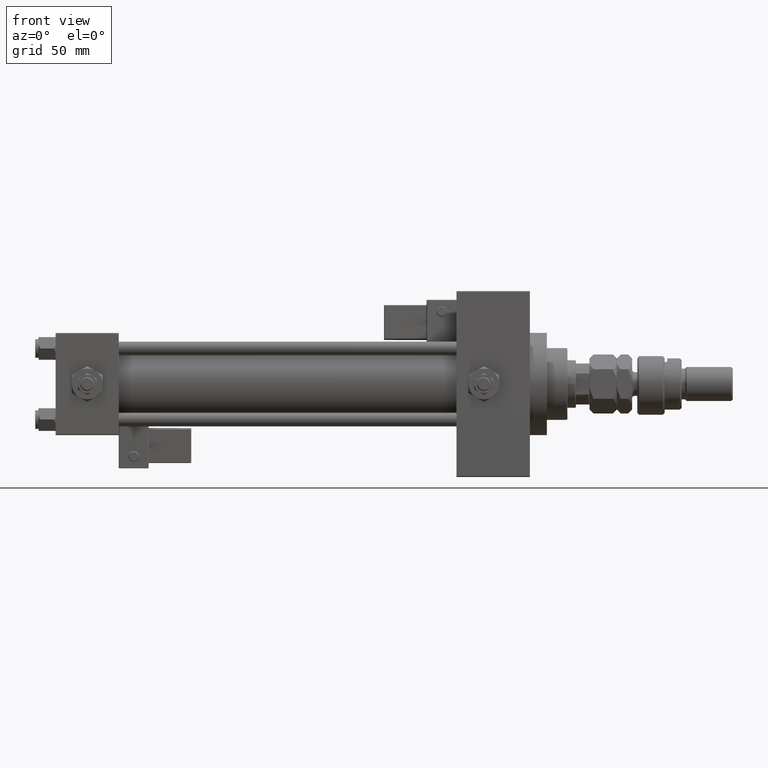
[diagram: clean part render]
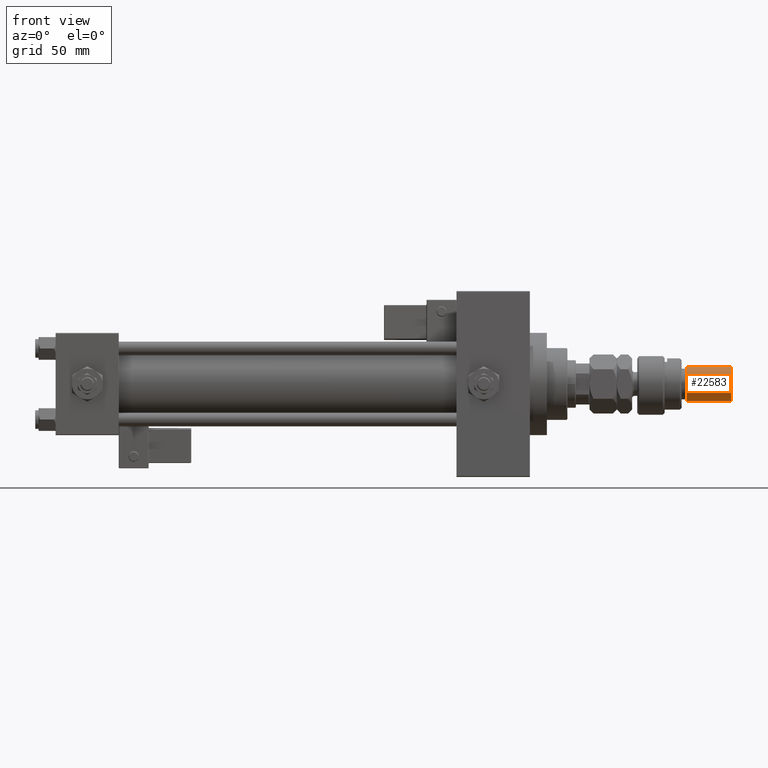
[diagram: same view with one face highlighted and labeled with its STEP entity id]
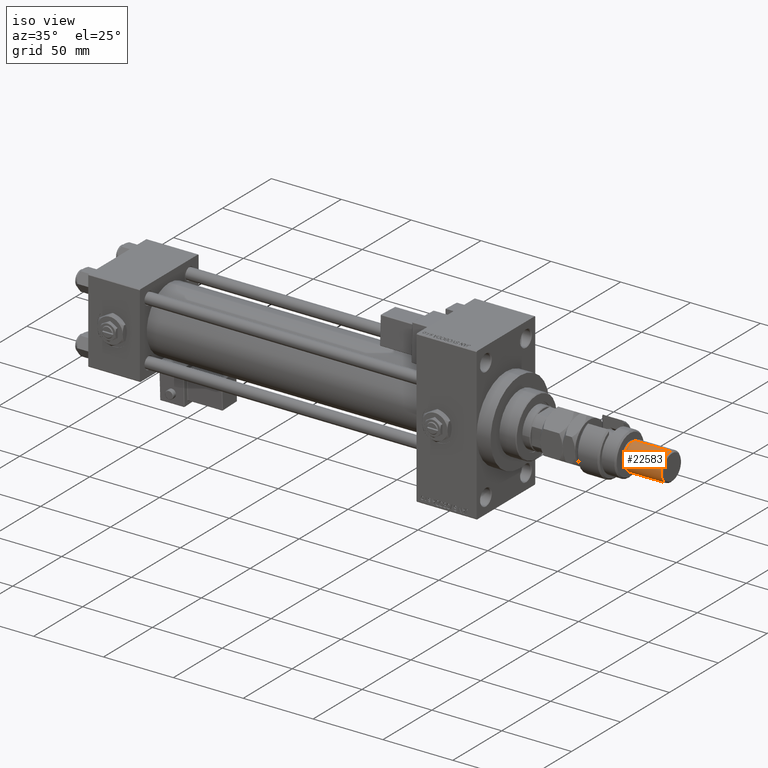
[diagram: same view with one face highlighted and labeled with its STEP entity id]
A machine part, front view. The second image highlights one B-rep face of the part: STEP entity #22583.
A second angle (iso view) of the same face is appended — the face is thin or edge-on in the first view.
In plain terms, the highlighted cylindrical surface (edge-blend (fillet) strip) has radius 10 mm, axis along (-1, -0, 0).
Its self-contained STEP definition (entity closure, byte-faithful):
#1402 = AXIS2_PLACEMENT_3D ( 'NONE', #26066, #13423, #29644 ) ;
#1654 = EDGE_CURVE ( 'NONE', #9717, #23556, #12579, .T. ) ;
#4540 = DIRECTION ( 'NONE',  ( 0.000000000000000000, 0.000000000000000000, -1.000000000000000000 ) ) ;
#9277 = VECTOR ( 'NONE', #12612, 1000.000000000000000 ) ;
#9717 = VERTEX_POINT ( 'NONE', #43278 ) ;
#12579 = CIRCLE ( 'NONE', #49328, 10.00000000000000000 ) ;
#12612 = DIRECTION ( 'NONE',  ( -0.000000000000000000, -0.000000000000000000, -1.000000000000000000 ) ) ;
#13039 = CARTESIAN_POINT ( 'NONE',  ( 0.000000000000000000, 0.000000000000000000, 54.99999999999998579 ) ) ;
#13423 = DIRECTION ( 'NONE',  ( -0.000000000000000000, -0.000000000000000000, -1.000000000000000000 ) ) ;
#16091 = EDGE_LOOP ( 'NONE', ( #49209, #47125, #48972, #16681 ) ) ;
#16681 = ORIENTED_EDGE ( 'NONE', *, *, #1654, .T. ) ;
#19255 = CARTESIAN_POINT ( 'NONE',  ( 10.00000000000000000, 1.224646799147353256E-15, 54.99999999999998579 ) ) ;
#20032 = CARTESIAN_POINT ( 'NONE',  ( -10.00000000000000000, 0.000000000000000000, 56.00000000000000711 ) ) ;
#21658 = FACE_OUTER_BOUND ( 'NONE', #16091, .T. ) ;
#22510 = EDGE_CURVE ( 'NONE', #48214, #9717, #41747, .T. ) ;
#22583 = ADVANCED_FACE ( 'NONE', ( #21658 ), #38163, .T. ) ;
#23556 = VERTEX_POINT ( 'NONE', #30999 ) ;
#26066 = CARTESIAN_POINT ( 'NONE',  ( 0.000000000000000000, 0.000000000000000000, 56.00000000000000711 ) ) ;
#26751 = AXIS2_PLACEMENT_3D ( 'NONE', #13039, #4540, #33374 ) ;
#28274 = DIRECTION ( 'NONE',  ( -0.000000000000000000, -0.000000000000000000, -1.000000000000000000 ) ) ;
#29139 = DIRECTION ( 'NONE',  ( 1.000000000000000000, 0.000000000000000000, 0.000000000000000000 ) ) ;
#29644 = DIRECTION ( 'NONE',  ( -1.000000000000000000, 0.000000000000000000, 0.000000000000000000 ) ) ;
#30999 = CARTESIAN_POINT ( 'NONE',  ( 10.00000000000000000, 1.224646799147353256E-15, 29.00000000000000711 ) ) ;
#31645 = VECTOR ( 'NONE', #28274, 1000.000000000000000 ) ;
#32854 = CIRCLE ( 'NONE', #26751, 10.00000000000000000 ) ;
#33374 = DIRECTION ( 'NONE',  ( 1.000000000000000000, 0.000000000000000000, 0.000000000000000000 ) ) ;
#36091 = EDGE_CURVE ( 'NONE', #39924, #23556, #40384, .T. ) ;
#38163 = CYLINDRICAL_SURFACE ( 'NONE', #1402, 10.00000000000000000 ) ;
#39924 = VERTEX_POINT ( 'NONE', #19255 ) ;
#40384 = LINE ( 'NONE', #45048, #31645 ) ;
#41747 = LINE ( 'NONE', #20032, #9277 ) ;
#43278 = CARTESIAN_POINT ( 'NONE',  ( -10.00000000000000000, 0.000000000000000000, 29.00000000000000711 ) ) ;
#44218 = EDGE_CURVE ( 'NONE', #39924, #48214, #32854, .T. ) ;
#45048 = CARTESIAN_POINT ( 'NONE',  ( 10.00000000000000000, 1.224646799147353256E-15, 56.00000000000000711 ) ) ;
#45377 = CARTESIAN_POINT ( 'NONE',  ( 0.000000000000000000, 0.000000000000000000, 29.00000000000000711 ) ) ;
#46582 = CARTESIAN_POINT ( 'NONE',  ( -10.00000000000000000, 0.000000000000000000, 54.99999999999998579 ) ) ;
#47125 = ORIENTED_EDGE ( 'NONE', *, *, #44218, .T. ) ;
#48214 = VERTEX_POINT ( 'NONE', #46582 ) ;
#48972 = ORIENTED_EDGE ( 'NONE', *, *, #22510, .T. ) ;
#49209 = ORIENTED_EDGE ( 'NONE', *, *, #36091, .F. ) ;
#49328 = AXIS2_PLACEMENT_3D ( 'NONE', #45377, #50033, #29139 ) ;
#50033 = DIRECTION ( 'NONE',  ( -0.000000000000000000, -0.000000000000000000, 1.000000000000000000 ) ) ;